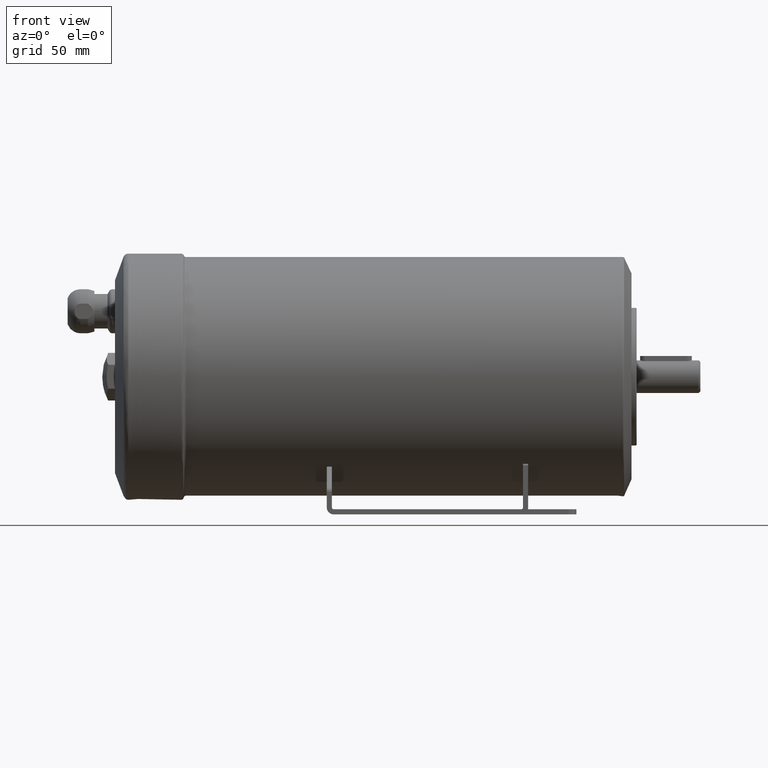
[diagram: clean part render]
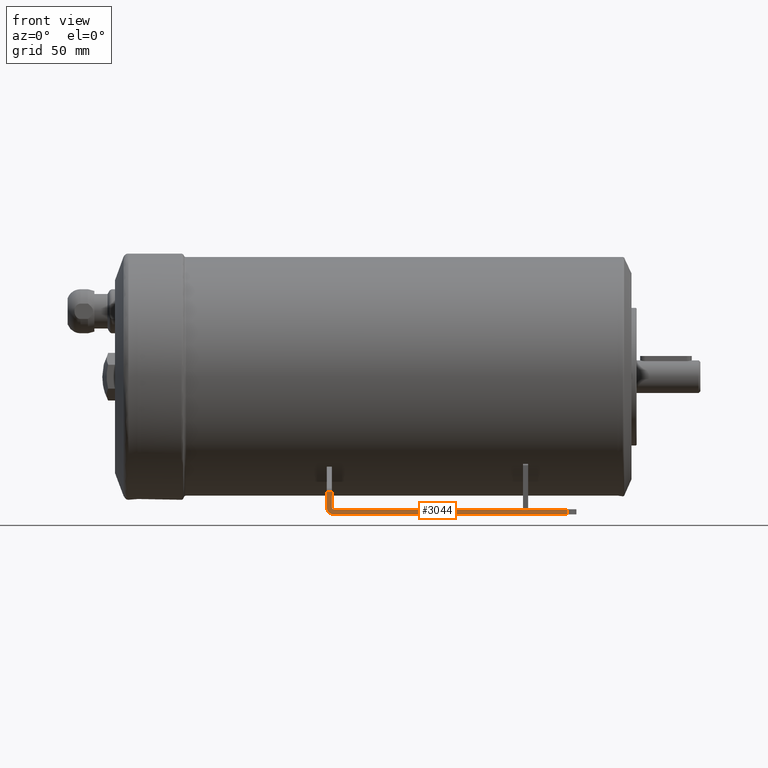
[diagram: same view with one face highlighted and labeled with its STEP entity id]
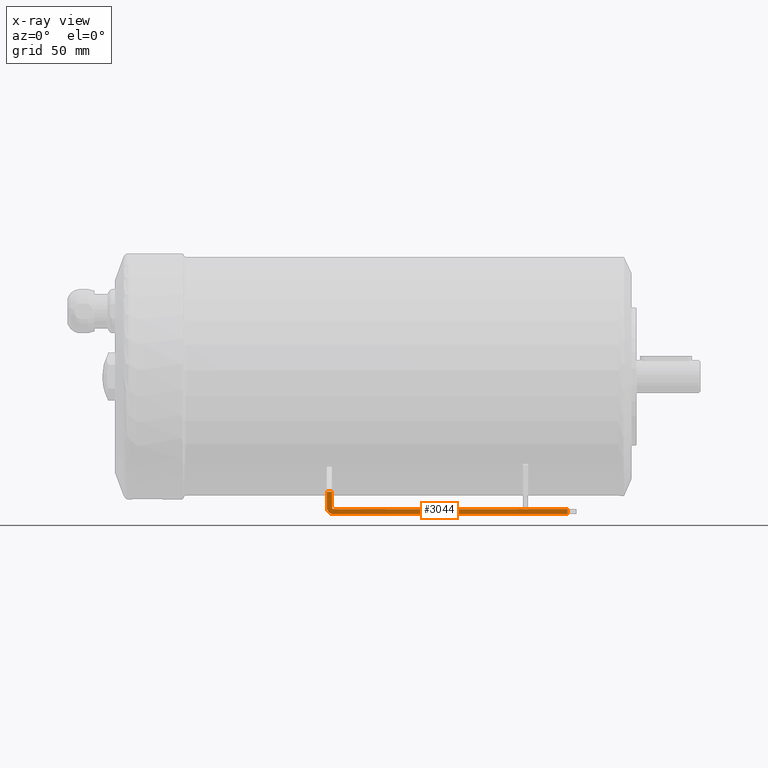
[diagram: x-ray of the same camera — body ghosted, the highlighted face saturated]
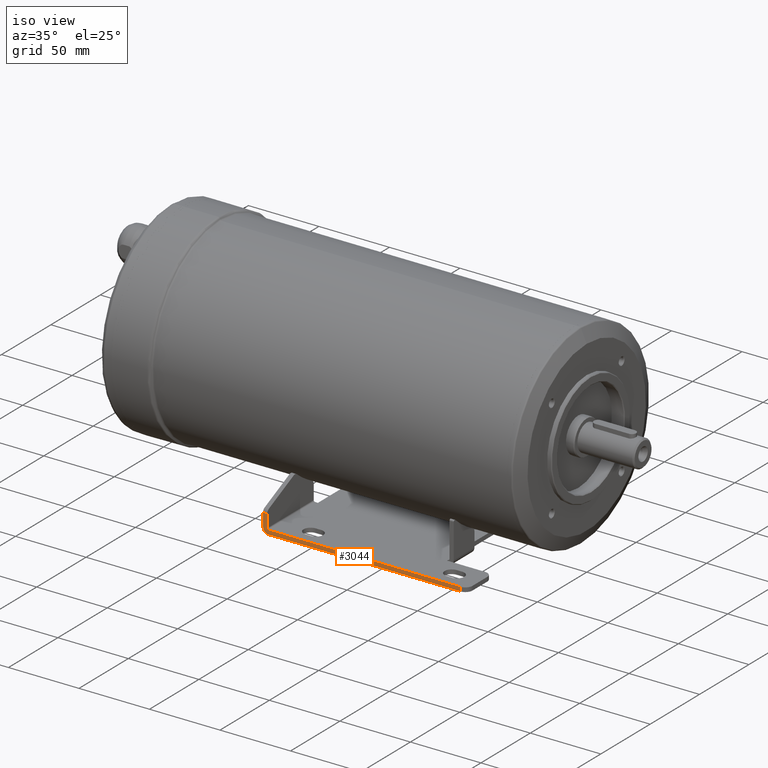
[diagram: same view with one face highlighted and labeled with its STEP entity id]
A machine part, front view. The second image highlights one B-rep face of the part: STEP entity #3044.
The next image is the same camera in x-ray: the body ghosted, the highlighted face saturated — about 0% of this face is hidden behind the body in this view.
A second angle (iso view) of the same face is appended — the face is thin or edge-on in the first view.
In plain terms, the highlighted planar face has unit normal (0, 1, -0).
Its self-contained STEP definition (entity closure, byte-faithful):
#70=PLANE('',#3317);
#185=LINE('',#4657,#347);
#206=LINE('',#4718,#368);
#219=LINE('',#4749,#381);
#220=LINE('',#4752,#382);
#221=LINE('',#4754,#383);
#222=LINE('',#4756,#384);
#347=VECTOR('',#3843,1000.);
#368=VECTOR('',#3884,1000.);
#381=VECTOR('',#3907,1000.);
#382=VECTOR('',#3910,1000.);
#383=VECTOR('',#3911,1000.);
#384=VECTOR('',#3912,1000.);
#775=ORIENTED_EDGE('',*,*,#1245,.T.);
#776=ORIENTED_EDGE('',*,*,#1291,.T.);
#777=ORIENTED_EDGE('',*,*,#1275,.F.);
#778=ORIENTED_EDGE('',*,*,#1292,.F.);
#779=ORIENTED_EDGE('',*,*,#1293,.F.);
#780=ORIENTED_EDGE('',*,*,#1294,.T.);
#781=ORIENTED_EDGE('',*,*,#1295,.T.);
#782=ORIENTED_EDGE('',*,*,#1296,.T.);
#1245=EDGE_CURVE('',#1551,#1550,#185,.T.);
#1275=EDGE_CURVE('',#1580,#1581,#206,.T.);
#1291=EDGE_CURVE('',#1550,#1581,#219,.T.);
#1292=EDGE_CURVE('',#1594,#1580,#1754,.F.);
#1293=EDGE_CURVE('',#1595,#1594,#220,.T.);
#1294=EDGE_CURVE('',#1595,#1596,#221,.F.);
#1295=EDGE_CURVE('',#1596,#1597,#222,.T.);
#1296=EDGE_CURVE('',#1597,#1551,#1755,.T.);
#1550=VERTEX_POINT('',#4656);
#1551=VERTEX_POINT('',#4658);
#1580=VERTEX_POINT('',#4717);
#1581=VERTEX_POINT('',#4719);
#1594=VERTEX_POINT('',#4751);
#1595=VERTEX_POINT('',#4753);
#1596=VERTEX_POINT('',#4755);
#1597=VERTEX_POINT('',#4757);
#1754=CIRCLE('',#3318,1.);
#1755=CIRCLE('',#3319,4.);
#1963=EDGE_LOOP('',(#775,#776,#777,#778,#779,#780,#781,#782));
#2200=FACE_BOUND('',#1963,.T.);
#3044=ADVANCED_FACE('',(#2200),#70,.F.);
#3317=AXIS2_PLACEMENT_3D('',#4748,#3905,#3906);
#3318=AXIS2_PLACEMENT_3D('',#4750,#3908,#3909);
#3319=AXIS2_PLACEMENT_3D('',#4758,#3913,#3914);
#3843=DIRECTION('',(1.,0.,0.));
#3884=DIRECTION('',(1.,0.,0.));
#3905=DIRECTION('',(0.,1.,0.));
#3906=DIRECTION('',(0.,0.,1.));
#3907=DIRECTION('',(0.,0.,1.));
#3908=DIRECTION('',(0.,1.,0.));
#3909=DIRECTION('',(0.,0.,1.));
#3910=DIRECTION('',(-6.12323399573677E-17,0.,-1.));
#3911=DIRECTION('',(1.,0.,0.));
#3912=DIRECTION('',(-6.12323399573677E-17,0.,-1.));
#3913=DIRECTION('',(0.,-1.,0.));
#3914=DIRECTION('',(0.,0.,1.));
#4656=CARTESIAN_POINT('',(63.,-75.,0.));
#4657=CARTESIAN_POINT('',(-77.,-75.,0.));
#4658=CARTESIAN_POINT('',(-73.,-75.,0.));
#4717=CARTESIAN_POINT('',(-73.,-75.,3.));
#4718=CARTESIAN_POINT('',(-77.,-75.,3.));
#4719=CARTESIAN_POINT('',(63.,-75.,3.));
#4748=CARTESIAN_POINT('',(-77.,-75.,3.));
#4749=CARTESIAN_POINT('',(63.,-75.,3.));
#4750=CARTESIAN_POINT('',(-73.,-75.,4.));
#4751=CARTESIAN_POINT('',(-74.,-75.,4.));
#4752=CARTESIAN_POINT('',(-74.,-75.,15.));
#4753=CARTESIAN_POINT('',(-74.,-75.,13.0887892175775));
#4754=CARTESIAN_POINT('',(-77.,-75.,13.0887892175775));
#4755=CARTESIAN_POINT('',(-77.,-75.,13.0887892175775));
#4756=CARTESIAN_POINT('',(-77.,-75.,15.));
#4757=CARTESIAN_POINT('',(-77.,-75.,4.00000000000001));
#4758=CARTESIAN_POINT('',(-73.,-75.,4.));